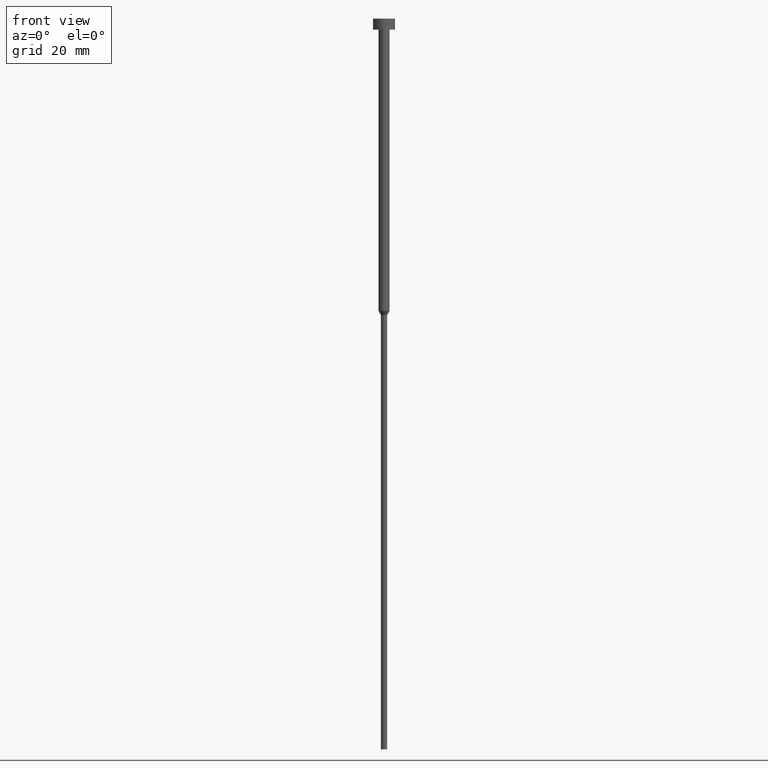
[diagram: clean part render]
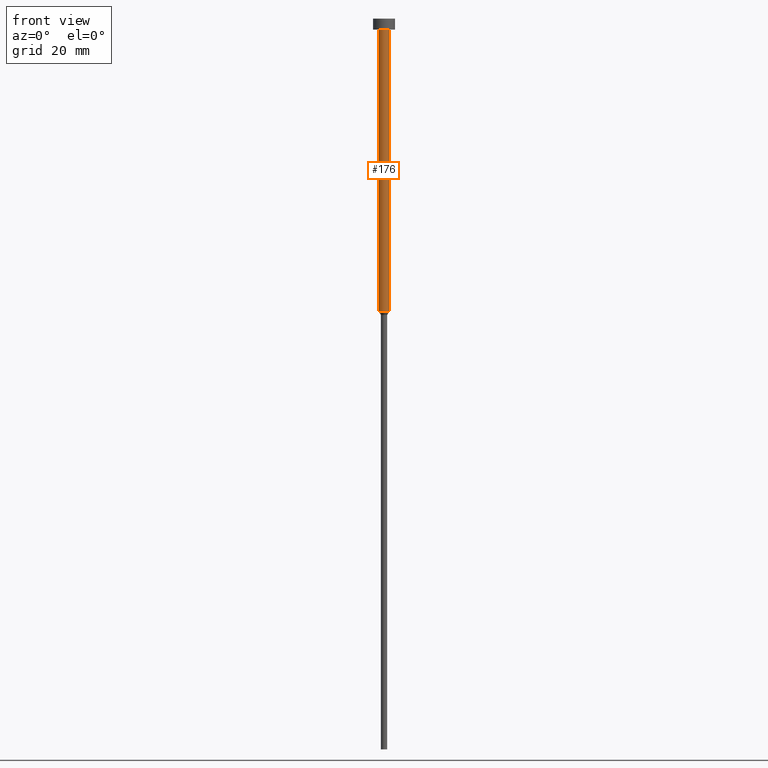
[diagram: same view with one face highlighted and labeled with its STEP entity id]
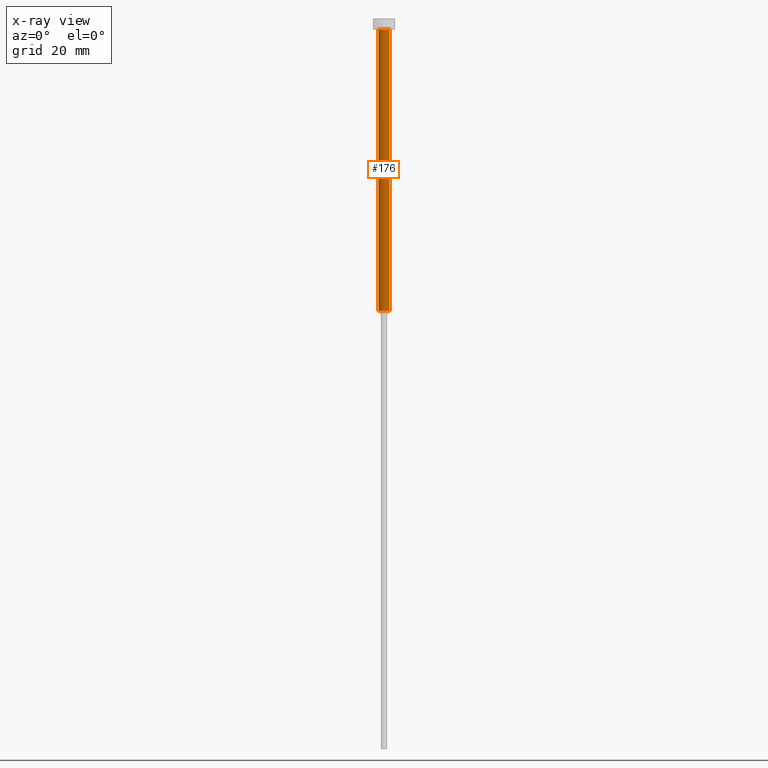
[diagram: x-ray of the same camera — body ghosted, the highlighted face saturated]
A machine part, front view. The second image highlights one B-rep face of the part: STEP entity #176.
The next image is the same camera in x-ray: the body ghosted, the highlighted face saturated — about 0% of this face is hidden behind the body in this view.
In plain terms, the highlighted cylindrical surface (edge-blend (fillet) strip) has radius 1.5 mm, axis along (-0, -0, 1).
Its self-contained STEP definition (entity closure, byte-faithful):
#4 = VERTEX_POINT ( 'NONE', #193 ) ;
#5 = DIRECTION ( 'NONE',  ( -0.000000000000000000, -0.000000000000000000, 1.000000000000000000 ) ) ;
#9 = FACE_OUTER_BOUND ( 'NONE', #244, .T. ) ;
#28 = VECTOR ( 'NONE', #122, 1000.000000000000000 ) ;
#32 = DIRECTION ( 'NONE',  ( 1.000000000000000000, 0.000000000000000000, 0.000000000000000000 ) ) ;
#38 = DIRECTION ( 'NONE',  ( -0.000000000000000000, -0.000000000000000000, 1.000000000000000000 ) ) ;
#64 = CARTESIAN_POINT ( 'NONE',  ( 0.000000000000000000, 0.000000000000000000, 0.000000000000000000 ) ) ;
#71 = CARTESIAN_POINT ( 'NONE',  ( -1.500000000000000000, 1.836970198721029934E-16, -3.000000000000000888 ) ) ;
#85 = ORIENTED_EDGE ( 'NONE', *, *, #127, .T. ) ;
#90 = ORIENTED_EDGE ( 'NONE', *, *, #289, .T. ) ;
#93 = ORIENTED_EDGE ( 'NONE', *, *, #203, .F. ) ;
#98 = CIRCLE ( 'NONE', #135, 1.500000000000000000 ) ;
#101 = ORIENTED_EDGE ( 'NONE', *, *, #234, .F. ) ;
#121 = CARTESIAN_POINT ( 'NONE',  ( -1.500000000000000000, 1.836970198721029934E-16, 0.000000000000000000 ) ) ;
#122 = DIRECTION ( 'NONE',  ( -0.000000000000000000, -0.000000000000000000, 1.000000000000000000 ) ) ;
#125 = LINE ( 'NONE', #172, #28 ) ;
#127 = EDGE_CURVE ( 'NONE', #146, #175, #125, .T. ) ;
#134 = CIRCLE ( 'NONE', #144, 1.500000000000000000 ) ;
#135 = AXIS2_PLACEMENT_3D ( 'NONE', #187, #298, #243 ) ;
#144 = AXIS2_PLACEMENT_3D ( 'NONE', #224, #329, #32 ) ;
#146 = VERTEX_POINT ( 'NONE', #332 ) ;
#156 = CYLINDRICAL_SURFACE ( 'NONE', #238, 1.500000000000000000 ) ;
#170 = CARTESIAN_POINT ( 'NONE',  ( 1.500000000000000000, 0.000000000000000000, -3.000000000000000888 ) ) ;
#172 = CARTESIAN_POINT ( 'NONE',  ( 1.500000000000000000, 0.000000000000000000, 0.000000000000000000 ) ) ;
#175 = VERTEX_POINT ( 'NONE', #170 ) ;
#176 = ADVANCED_FACE ( 'NONE', ( #9 ), #156, .T. ) ;
#187 = CARTESIAN_POINT ( 'NONE',  ( 0.000000000000000000, 0.000000000000000000, -80.00000000000000000 ) ) ;
#193 = CARTESIAN_POINT ( 'NONE',  ( -1.500000000000000000, 1.836970198721029934E-16, -80.00000000000000000 ) ) ;
#202 = DIRECTION ( 'NONE',  ( 1.000000000000000000, 0.000000000000000000, 0.000000000000000000 ) ) ;
#203 = EDGE_CURVE ( 'NONE', #4, #240, #281, .T. ) ;
#224 = CARTESIAN_POINT ( 'NONE',  ( 0.000000000000000000, 0.000000000000000000, -3.000000000000000888 ) ) ;
#234 = EDGE_CURVE ( 'NONE', #240, #175, #134, .T. ) ;
#238 = AXIS2_PLACEMENT_3D ( 'NONE', #64, #5, #202 ) ;
#240 = VERTEX_POINT ( 'NONE', #71 ) ;
#243 = DIRECTION ( 'NONE',  ( 1.000000000000000000, 0.000000000000000000, 0.000000000000000000 ) ) ;
#244 = EDGE_LOOP ( 'NONE', ( #93, #90, #85, #101 ) ) ;
#255 = VECTOR ( 'NONE', #38, 1000.000000000000000 ) ;
#281 = LINE ( 'NONE', #121, #255 ) ;
#289 = EDGE_CURVE ( 'NONE', #4, #146, #98, .T. ) ;
#298 = DIRECTION ( 'NONE',  ( -0.000000000000000000, -0.000000000000000000, 1.000000000000000000 ) ) ;
#329 = DIRECTION ( 'NONE',  ( -0.000000000000000000, -0.000000000000000000, 1.000000000000000000 ) ) ;
#332 = CARTESIAN_POINT ( 'NONE',  ( 1.500000000000000000, 0.000000000000000000, -80.00000000000000000 ) ) ;